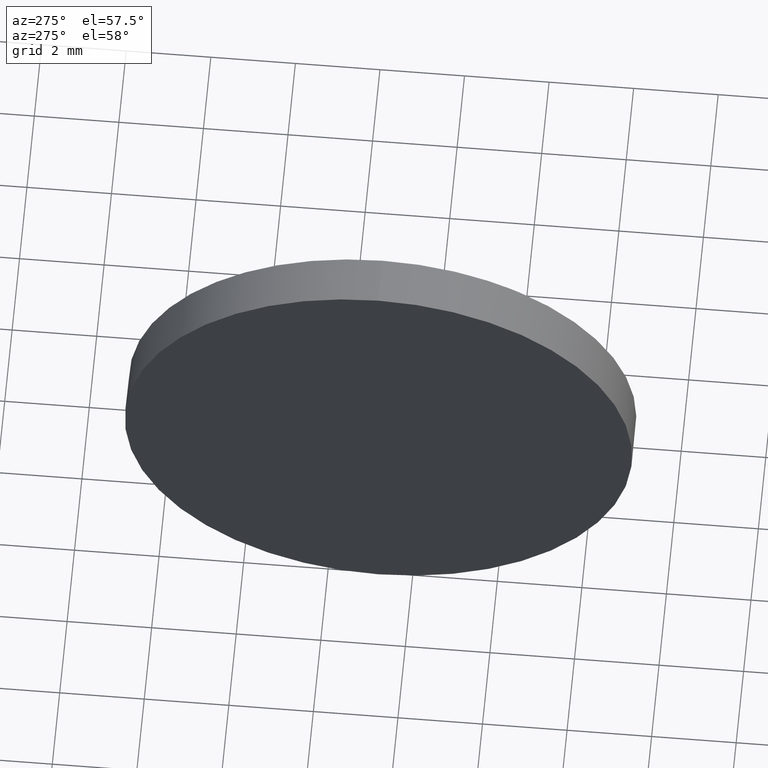
[diagram: clean part render]
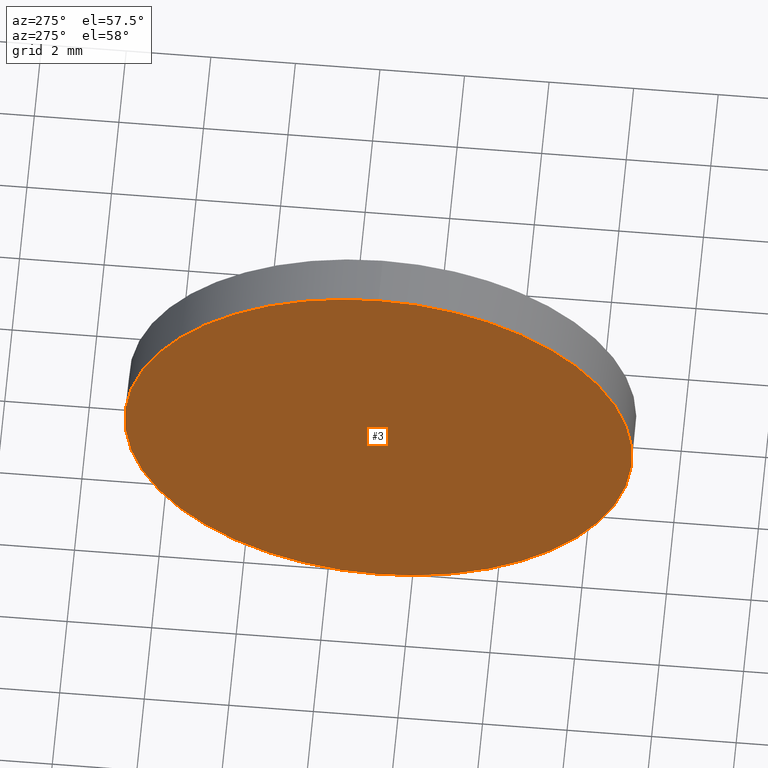
[diagram: same view with one face highlighted and labeled with its STEP entity id]
A machine part, auxiliary view. The second image highlights one B-rep face of the part: STEP entity #3.
In plain terms, the highlighted planar face has unit normal (1, 0, 0).
Its self-contained STEP definition (entity closure, byte-faithful):
#3 = ADVANCED_FACE ( 'NONE', ( #60 ), #55, .F. ) ;
#7 = DIRECTION ( 'NONE',  ( -1.000000000000000000, -0.0000000000000000000, -0.0000000000000000000 ) ) ;
#16 = VERTEX_POINT ( 'NONE', #32 ) ;
#26 = EDGE_LOOP ( 'NONE', ( #87, #142 ) ) ;
#30 = DIRECTION ( 'NONE',  ( 0.0000000000000000000, 0.0000000000000000000, 1.000000000000000000 ) ) ;
#32 = CARTESIAN_POINT ( 'NONE',  ( 363.7880584487206800, 4.792432630427242700, 6.000000000000000000 ) ) ;
#35 = DIRECTION ( 'NONE',  ( -1.000000000000000000, -0.0000000000000000000, -0.0000000000000000000 ) ) ;
#54 = DIRECTION ( 'NONE',  ( 0.0000000000000000000, 0.0000000000000000000, -1.000000000000000000 ) ) ;
#55 = PLANE ( 'NONE',  #174 ) ;
#56 = CARTESIAN_POINT ( 'NONE',  ( 363.7880584487206800, 4.792432630427242700, 0.0000000000000000000 ) ) ;
#60 = FACE_OUTER_BOUND ( 'NONE', #26, .T. ) ;
#75 = CARTESIAN_POINT ( 'NONE',  ( 363.7880584487206800, 4.792432630427242700, 0.0000000000000000000 ) ) ;
#76 = DIRECTION ( 'NONE',  ( 0.0000000000000000000, 0.0000000000000000000, 1.000000000000000000 ) ) ;
#78 = CIRCLE ( 'NONE', #88, 6.000000000000000000 ) ;
#87 = ORIENTED_EDGE ( 'NONE', *, *, #177, .T. ) ;
#88 = AXIS2_PLACEMENT_3D ( 'NONE', #100, #7, #30 ) ;
#98 = EDGE_CURVE ( 'NONE', #131, #16, #78, .T. ) ;
#100 = CARTESIAN_POINT ( 'NONE',  ( 363.7880584487206800, 4.792432630427242700, 0.0000000000000000000 ) ) ;
#111 = CIRCLE ( 'NONE', #158, 6.000000000000000000 ) ;
#131 = VERTEX_POINT ( 'NONE', #147 ) ;
#142 = ORIENTED_EDGE ( 'NONE', *, *, #98, .T. ) ;
#147 = CARTESIAN_POINT ( 'NONE',  ( 363.7880584487206800, 4.792432630427243500, -6.000000000000000000 ) ) ;
#158 = AXIS2_PLACEMENT_3D ( 'NONE', #75, #35, #76 ) ;
#164 = DIRECTION ( 'NONE',  ( 1.000000000000000000, 0.0000000000000000000, 0.0000000000000000000 ) ) ;
#174 = AXIS2_PLACEMENT_3D ( 'NONE', #56, #164, #54 ) ;
#177 = EDGE_CURVE ( 'NONE', #16, #131, #111, .T. ) ;